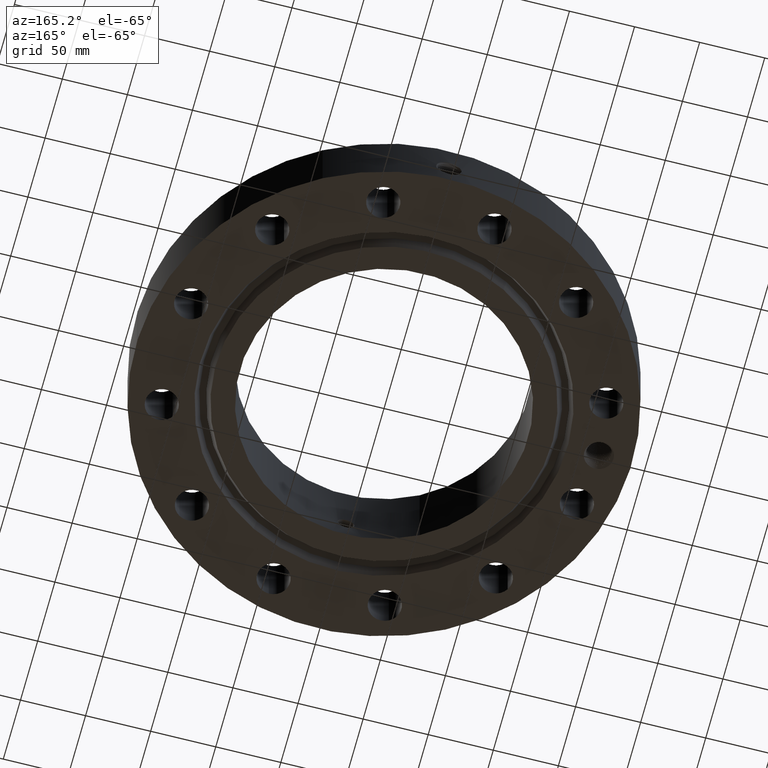
[diagram: clean part render]
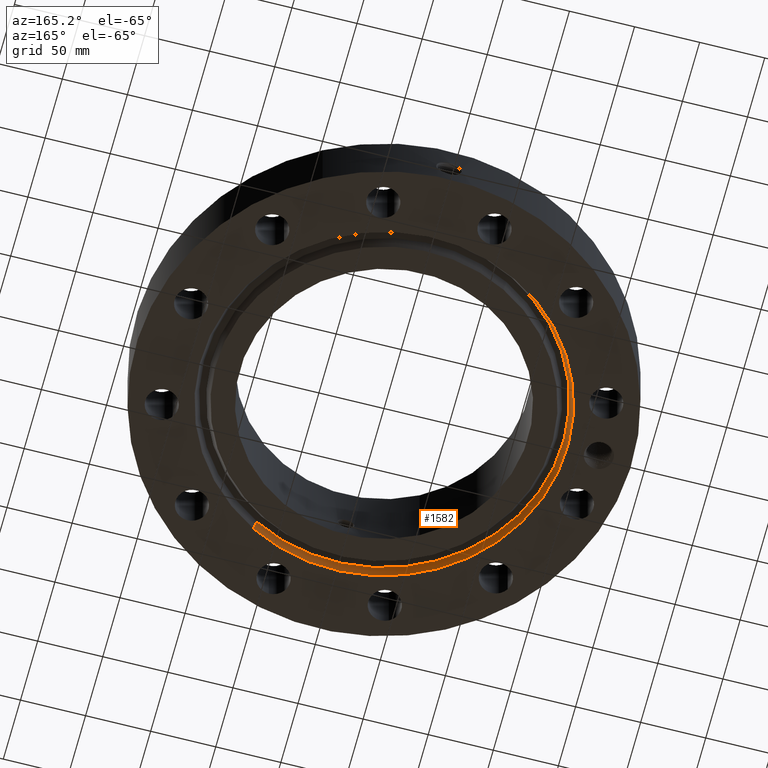
[diagram: same view with one face highlighted and labeled with its STEP entity id]
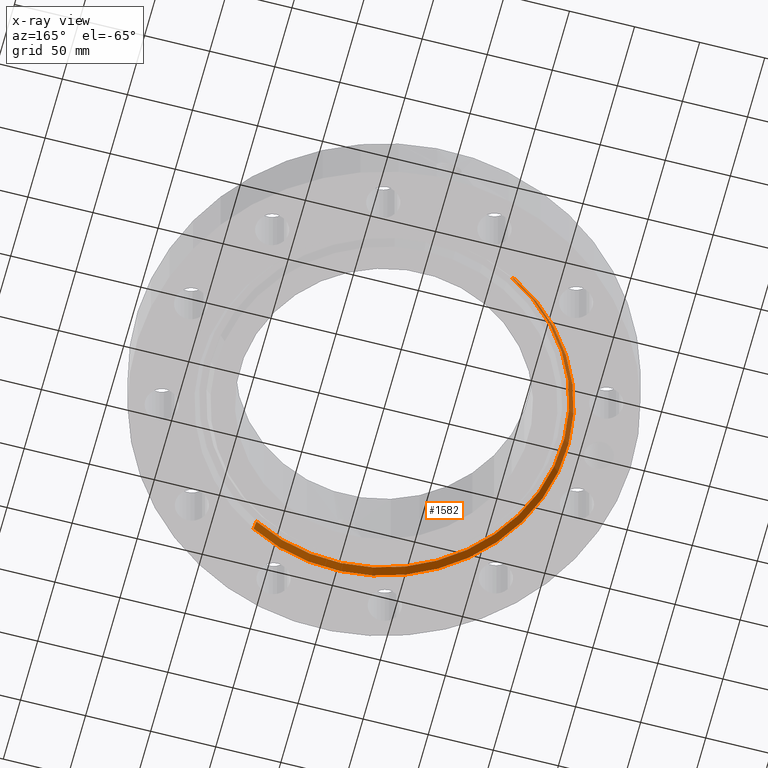
[diagram: x-ray of the same camera — body ghosted, the highlighted face saturated]
A machine part, auxiliary view. The second image highlights one B-rep face of the part: STEP entity #1582.
The next image is the same camera in x-ray: the body ghosted, the highlighted face saturated — about 0% of this face is hidden behind the body in this view.
In plain terms, the highlighted conical surface has half-angle 23 deg.
Its self-contained STEP definition (entity closure, byte-faithful):
#412=AXIS2_PLACEMENT_3D('Circle Axis2P3D',#410,#411,$) ;
#1555=AXIS2_PLACEMENT_3D('Cone Axis2P3D',#1552,#1553,#1554) ;
#1566=AXIS2_PLACEMENT_3D('Circle Axis2P3D',#1564,#1565,$) ;
#410=CARTESIAN_POINT('Axis2P3D Location',(1.39870617276E-016,5.59482469102E-016,0.)) ;
#414=CARTESIAN_POINT('Vertex',(2.65937346265,-4.86795047083,-3.49676543189E-017)) ;
#416=CARTESIAN_POINT('Vertex',(-2.65937346265,4.86795047083,-3.49676543189E-017)) ;
#1552=CARTESIAN_POINT('Axis2P3D Location',(0.,0.,0.294112664984)) ;
#1557=CARTESIAN_POINT('Line Origine',(-2.62944690085,4.8131702669,0.147056332492)) ;
#1561=CARTESIAN_POINT('Vertex',(-2.59952033905,4.75839006298,0.294112664984)) ;
#1564=CARTESIAN_POINT('Axis2P3D Location',(0.,0.,0.294112664984)) ;
#1568=CARTESIAN_POINT('Vertex',(2.59952033905,-4.75839006298,0.294112664984)) ;
#1571=CARTESIAN_POINT('Line Origine',(2.62944690085,-4.8131702669,0.147056332492)) ;
#411=DIRECTION('Axis2P3D Direction',(0.,0.,-0.0393700787402)) ;
#1553=DIRECTION('Axis2P3D Direction',(-0.,-0.,-0.0393700787402)) ;
#1554=DIRECTION('Axis2P3D XDirection',(-0.0188750212049,0.0345504945626,0.)) ;
#1558=DIRECTION('Vector Direction',(-0.00737505833565,0.0134999537303,-0.0362403485611)) ;
#1565=DIRECTION('Axis2P3D Direction',(0.,0.,-0.0393700787402)) ;
#1572=DIRECTION('Vector Direction',(0.00737505833565,-0.0134999537303,-0.0362403485611)) ;
#1559=VECTOR('Line Direction',#1558,0.0393700787402) ;
#1573=VECTOR('Line Direction',#1572,0.0393700787402) ;
#1577=ORIENTED_EDGE('',*,*,#418,.T.) ;
#1578=ORIENTED_EDGE('',*,*,#1563,.T.) ;
#1579=ORIENTED_EDGE('',*,*,#1570,.T.) ;
#1580=ORIENTED_EDGE('',*,*,#1575,.F.) ;
#1582=ADVANCED_FACE('PartBody',(#1581),#1556,.F.) ;
#413=CIRCLE('generated circle',#412,5.54700000002) ;
#1567=CIRCLE('generated circle',#1566,5.42215658061) ;
#1556=CONICAL_SURFACE('Cone',#1555,5.42215658061,0.401425727959) ;
#418=EDGE_CURVE('',#415,#417,#413,.T.) ;
#1563=EDGE_CURVE('',#417,#1562,#1560,.F.) ;
#1570=EDGE_CURVE('',#1562,#1569,#1567,.F.) ;
#1575=EDGE_CURVE('',#415,#1569,#1574,.F.) ;
#1576=EDGE_LOOP('',(#1577,#1578,#1579,#1580)) ;
#1581=FACE_OUTER_BOUND('',#1576,.T.) ;
#1560=LINE('Line',#1557,#1559) ;
#1574=LINE('Line',#1571,#1573) ;
#415=VERTEX_POINT('',#414) ;
#417=VERTEX_POINT('',#416) ;
#1562=VERTEX_POINT('',#1561) ;
#1569=VERTEX_POINT('',#1568) ;